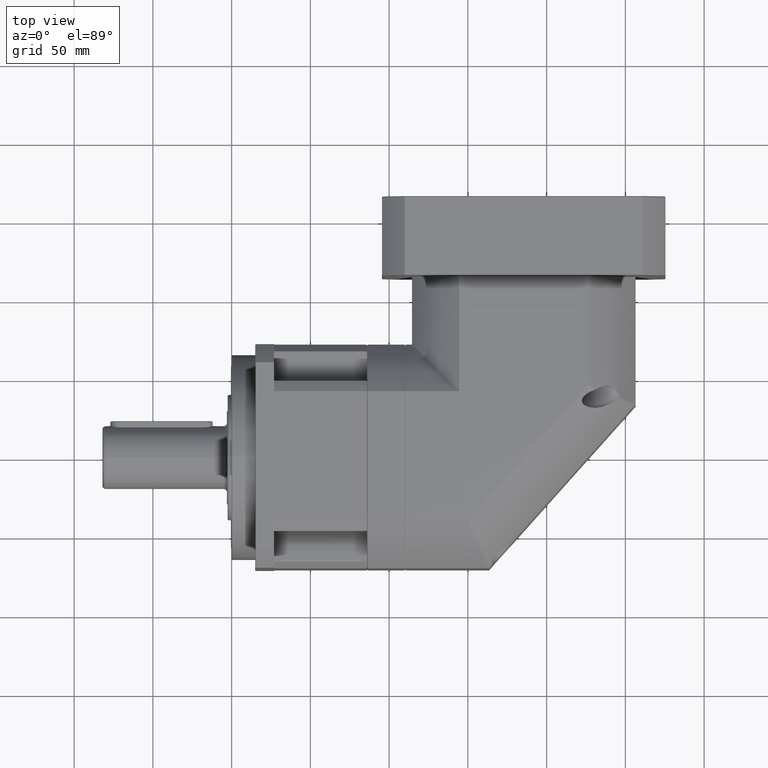
[diagram: clean part render]
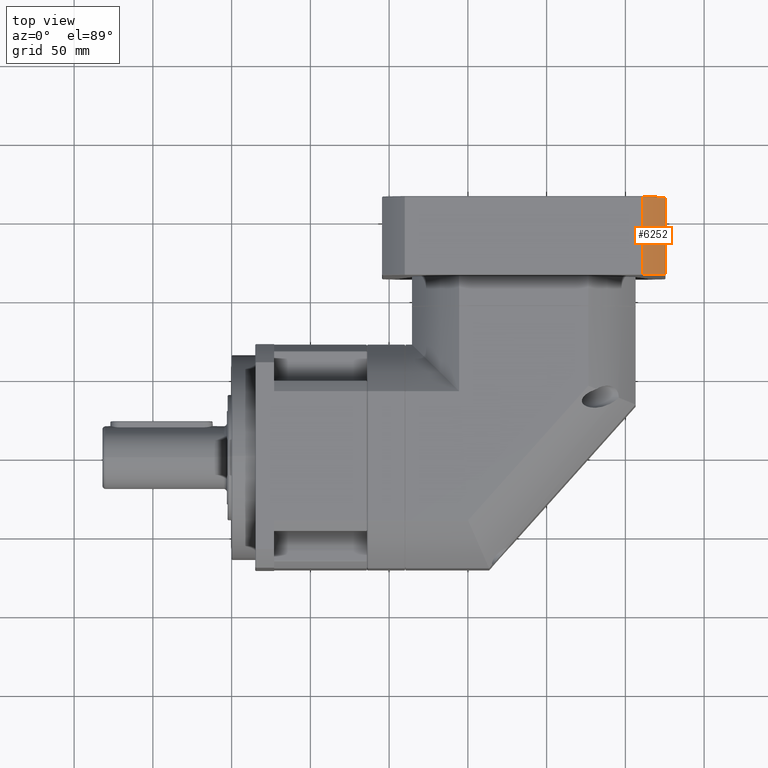
[diagram: same view with one face highlighted and labeled with its STEP entity id]
A machine part, top view. The second image highlights one B-rep face of the part: STEP entity #6252.
In plain terms, the highlighted cylindrical surface (partial cylindrical patch) has radius 117.5 mm, axis along (0, 1, 0).
Its self-contained STEP definition (entity closure, byte-faithful):
#4385=DIRECTION('',(1.E0,0.E0,0.E0));
#4386=VECTOR('',#4385,4.9E1);
#4387=CARTESIAN_POINT('',(5.E-1,-7.553972464869E1,-9.E1));
#4388=LINE('',#4387,#4386);
#4389=DIRECTION('',(-1.E0,0.E0,0.E0));
#4390=VECTOR('',#4389,4.9E1);
#4391=CARTESIAN_POINT('',(4.95E1,-9.E1,-7.553972464869E1));
#4392=LINE('',#4391,#4390);
#4481=CARTESIAN_POINT('',(4.95E1,-7.553972464869E1,-9.E1));
#4488=CARTESIAN_POINT('',(4.95E1,0.E0,0.E0));
#4489=DIRECTION('',(1.E0,0.E0,0.E0));
#4490=DIRECTION('',(0.E0,-7.659574468085E-1,-6.428912736059E-1));
#4491=AXIS2_PLACEMENT_3D('',#4488,#4489,#4490);
#5545=CARTESIAN_POINT('',(5.E-1,-9.E1,-7.553972464869E1));
#5552=CARTESIAN_POINT('',(5.E-1,0.E0,0.E0));
#5553=DIRECTION('',(-1.E0,0.E0,0.E0));
#5554=DIRECTION('',(0.E0,-6.428912736059E-1,-7.659574468085E-1));
#5555=AXIS2_PLACEMENT_3D('',#5552,#5553,#5554);
#5562=CARTESIAN_POINT('',(5.E-1,-7.553972464869E1,-9.E1));
#5656=VERTEX_POINT('',#4481);
#5753=CARTESIAN_POINT('',(4.95E1,-9.E1,-7.553972464869E1));
#5755=VERTEX_POINT('',#5753);
#5757=VERTEX_POINT('',#5562);
#5903=VERTEX_POINT('',#5545);
#6238=CARTESIAN_POINT('',(0.E0,0.E0,0.E0));
#6239=DIRECTION('',(1.E0,0.E0,0.E0));
#6240=DIRECTION('',(0.E0,0.E0,-1.E0));
#6241=AXIS2_PLACEMENT_3D('',#6238,#6239,#6240);
#6242=CYLINDRICAL_SURFACE('',#6241,1.175E2);
#6244=ORIENTED_EDGE('',*,*,#6243,.F.);
#6246=ORIENTED_EDGE('',*,*,#6245,.T.);
#6247=ORIENTED_EDGE('',*,*,#6228,.F.);
#6249=ORIENTED_EDGE('',*,*,#6248,.T.);
#6250=EDGE_LOOP('',(#6244,#6246,#6247,#6249));
#6251=FACE_OUTER_BOUND('',#6250,.F.);
#6252=ADVANCED_FACE('',(#6251),#6242,.T.);
#4492=CIRCLE('',#4491,1.175E2);
#5556=CIRCLE('',#5555,1.175E2);
#6228=EDGE_CURVE('',#5755,#5903,#4392,.T.);
#6243=EDGE_CURVE('',#5757,#5656,#4388,.T.);
#6245=EDGE_CURVE('',#5757,#5903,#5556,.T.);
#6248=EDGE_CURVE('',#5755,#5656,#4492,.T.);